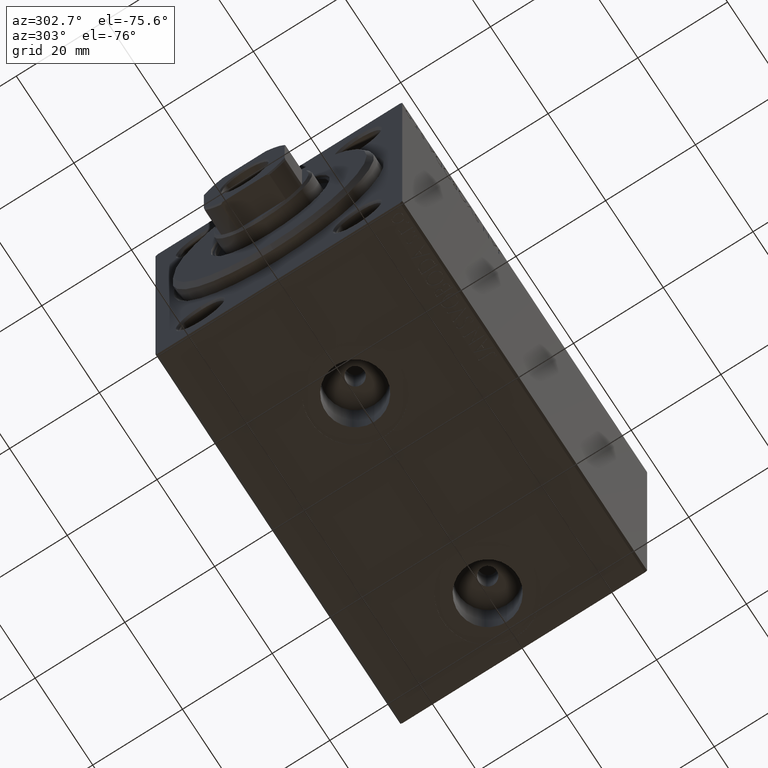
[diagram: clean part render]
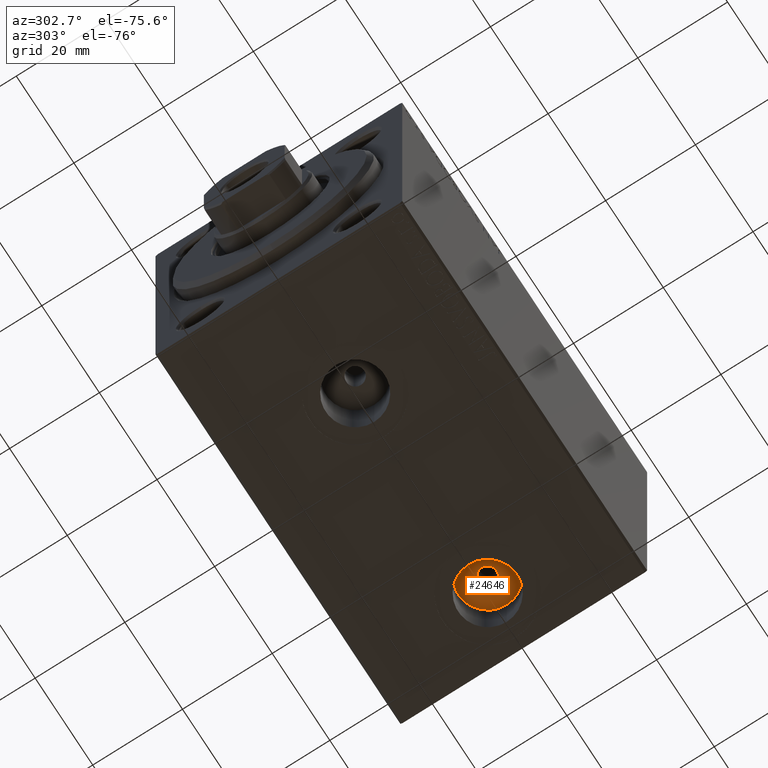
[diagram: same view with one face highlighted and labeled with its STEP entity id]
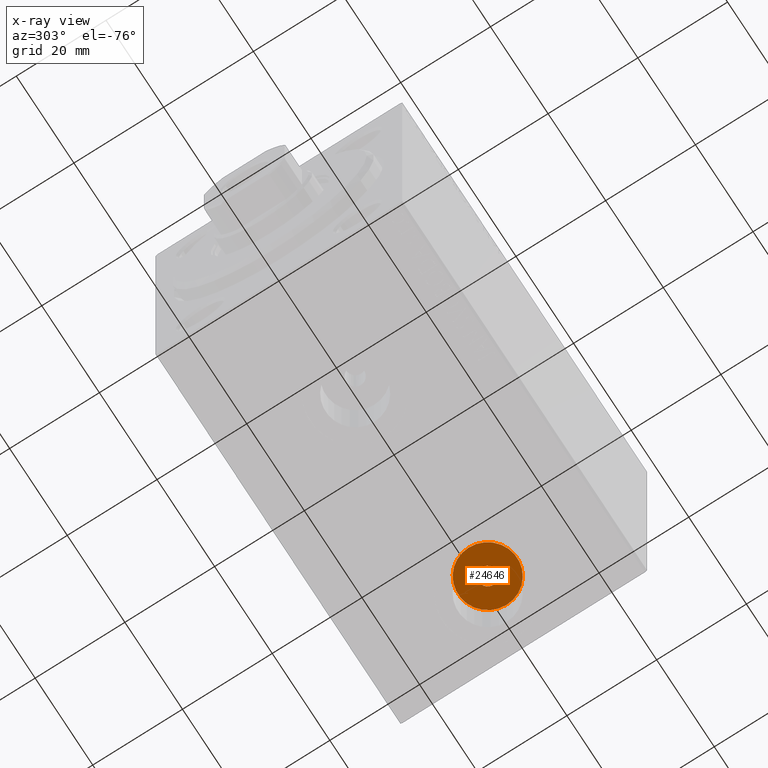
[diagram: x-ray of the same camera — body ghosted, the highlighted face saturated]
A machine part, auxiliary view. The second image highlights one B-rep face of the part: STEP entity #24646.
The next image is the same camera in x-ray: the body ghosted, the highlighted face saturated — about 0% of this face is hidden behind the body in this view.
In plain terms, the highlighted planar face has unit normal (0, 0, -1).
Its self-contained STEP definition (entity closure, byte-faithful):
#1126 = ORIENTED_EDGE ( 'NONE', *, *, #3413, .F. ) ;
#1928 = CARTESIAN_POINT ( 'NONE',  ( 72.50000000000001421, -1.099277363720772100E-14, -24.49999999999999289 ) ) ;
#3138 = DIRECTION ( 'NONE',  ( 0.000000000000000000, 0.000000000000000000, -1.000000000000000000 ) ) ;
#3413 = EDGE_CURVE ( 'NONE', #35427, #10777, #31571, .T. ) ;
#5614 = CARTESIAN_POINT ( 'NONE',  ( 70.50000000000000000, -1.099277363720772100E-14, -24.49999999999999289 ) ) ;
#5677 = AXIS2_PLACEMENT_3D ( 'NONE', #6352, #3138, #41615 ) ;
#6327 = CARTESIAN_POINT ( 'NONE',  ( 74.50000000000001421, -1.074784427737825071E-14, -24.49999999999999289 ) ) ;
#6352 = CARTESIAN_POINT ( 'NONE',  ( 72.50000000000001421, -1.099277363720772100E-14, -24.49999999999999289 ) ) ;
#6928 = AXIS2_PLACEMENT_3D ( 'NONE', #41418, #31274, #31494 ) ;
#9118 = VERTEX_POINT ( 'NONE', #29257 ) ;
#10777 = VERTEX_POINT ( 'NONE', #5614 ) ;
#10966 = AXIS2_PLACEMENT_3D ( 'NONE', #34994, #45373, #38682 ) ;
#11635 = EDGE_CURVE ( 'NONE', #29999, #9118, #35373, .T. ) ;
#12587 = EDGE_LOOP ( 'NONE', ( #40191, #40928 ) ) ;
#12715 = CIRCLE ( 'NONE', #44369, 2.000000000000001776 ) ;
#13998 = FACE_OUTER_BOUND ( 'NONE', #12587, .T. ) ;
#17858 = ORIENTED_EDGE ( 'NONE', *, *, #17975, .F. ) ;
#17975 = EDGE_CURVE ( 'NONE', #10777, #35427, #12715, .T. ) ;
#20124 = DIRECTION ( 'NONE',  ( -1.000000000000000000, 0.000000000000000000, 0.000000000000000000 ) ) ;
#20907 = FACE_BOUND ( 'NONE', #28039, .T. ) ;
#23616 = DIRECTION ( 'NONE',  ( 0.000000000000000000, 0.000000000000000000, -1.000000000000000000 ) ) ;
#24646 = ADVANCED_FACE ( 'NONE', ( #20907, #13998 ), #34962, .T. ) ;
#26365 = DIRECTION ( 'NONE',  ( 0.000000000000000000, 0.000000000000000000, -1.000000000000000000 ) ) ;
#28039 = EDGE_LOOP ( 'NONE', ( #17858, #1126 ) ) ;
#29257 = CARTESIAN_POINT ( 'NONE',  ( 65.92000000000000171, -1.099277363720772100E-14, -24.49999999999999289 ) ) ;
#29999 = VERTEX_POINT ( 'NONE', #44952 ) ;
#30744 = CARTESIAN_POINT ( 'NONE',  ( 72.50000000000001421, -1.099277363720772100E-14, -24.49999999999999289 ) ) ;
#30940 = AXIS2_PLACEMENT_3D ( 'NONE', #1928, #26365, #20124 ) ;
#31274 = DIRECTION ( 'NONE',  ( 0.000000000000000000, 0.000000000000000000, -1.000000000000000000 ) ) ;
#31494 = DIRECTION ( 'NONE',  ( -1.000000000000000000, 0.000000000000000000, -0.000000000000000000 ) ) ;
#31571 = CIRCLE ( 'NONE', #10966, 2.000000000000001776 ) ;
#32533 = EDGE_CURVE ( 'NONE', #9118, #29999, #33644, .T. ) ;
#33644 = CIRCLE ( 'NONE', #5677, 6.580000000000002736 ) ;
#34962 = PLANE ( 'NONE',  #6928 ) ;
#34994 = CARTESIAN_POINT ( 'NONE',  ( 72.50000000000001421, -1.099277363720772100E-14, -24.49999999999999289 ) ) ;
#35373 = CIRCLE ( 'NONE', #30940, 6.580000000000002736 ) ;
#35427 = VERTEX_POINT ( 'NONE', #6327 ) ;
#38682 = DIRECTION ( 'NONE',  ( -1.000000000000000000, 0.000000000000000000, 0.000000000000000000 ) ) ;
#40191 = ORIENTED_EDGE ( 'NONE', *, *, #32533, .T. ) ;
#40928 = ORIENTED_EDGE ( 'NONE', *, *, #11635, .T. ) ;
#41418 = CARTESIAN_POINT ( 'NONE',  ( 0.000000000000000000, 0.000000000000000000, -24.49999999999999289 ) ) ;
#41615 = DIRECTION ( 'NONE',  ( -1.000000000000000000, 0.000000000000000000, 0.000000000000000000 ) ) ;
#44369 = AXIS2_PLACEMENT_3D ( 'NONE', #30744, #23616, #44581 ) ;
#44581 = DIRECTION ( 'NONE',  ( -1.000000000000000000, 0.000000000000000000, 0.000000000000000000 ) ) ;
#44952 = CARTESIAN_POINT ( 'NONE',  ( 79.08000000000001251, -1.018695604336876196E-14, -24.49999999999999289 ) ) ;
#45373 = DIRECTION ( 'NONE',  ( 0.000000000000000000, 0.000000000000000000, -1.000000000000000000 ) ) ;